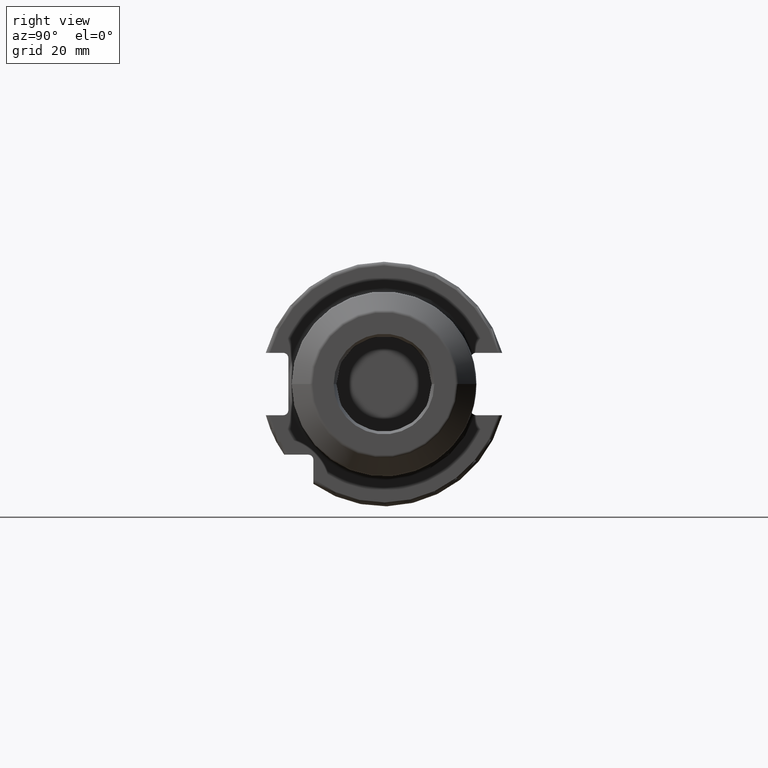
[diagram: clean part render]
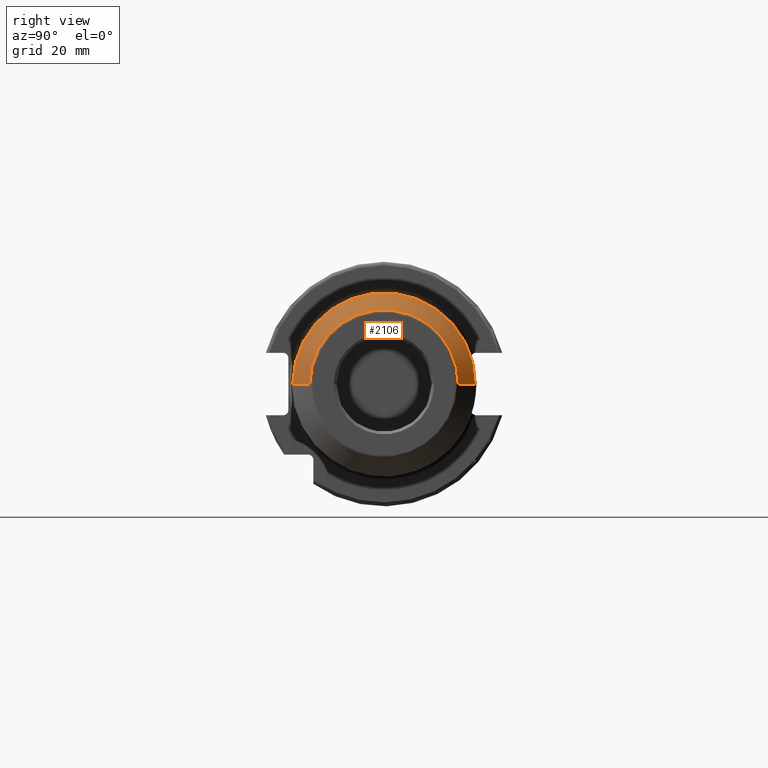
[diagram: same view with one face highlighted and labeled with its STEP entity id]
A machine part, right view. The second image highlights one B-rep face of the part: STEP entity #2106.
In plain terms, the highlighted conical surface has half-angle 45 deg.
Its self-contained STEP definition (entity closure, byte-faithful):
#279=DIRECTION('',(7.071067811865E-1,-7.071067811865E-1,-8.462109983681E-11));
#280=VECTOR('',#279,6.242640687118E0);
#281=CARTESIAN_POINT('',(9.529289321881E1,2.370710678119E1,2.871791463744E-9));
#282=LINE('',#281,#280);
#354=CARTESIAN_POINT('',(9.970710678119E1,0.E0,0.E0));
#355=DIRECTION('',(1.E0,0.E0,0.E0));
#356=DIRECTION('',(0.E0,1.E0,-7.484740775153E-12));
#357=AXIS2_PLACEMENT_3D('',#354,#355,#356);
#359=DIRECTION('',(7.071067811865E-1,7.071067811865E-1,8.462270488879E-11));
#360=VECTOR('',#359,6.242640687118E0);
#361=CARTESIAN_POINT('',(9.529289321881E1,-2.370710678119E1,
-2.871790790671E-9));
#362=LINE('',#361,#360);
#363=CARTESIAN_POINT('',(9.529289321881E1,0.E0,0.E0));
#364=DIRECTION('',(-1.E0,0.E0,0.E0));
#365=DIRECTION('',(0.E0,-1.E0,7.484863239833E-12));
#366=AXIS2_PLACEMENT_3D('',#363,#364,#365);
#1615=CARTESIAN_POINT('',(9.970710678119E1,-1.929289321881E1,
1.443999418475E-10));
#1616=CARTESIAN_POINT('',(9.970710678119E1,1.929289321881E1,
-1.444023045455E-10));
#1617=VERTEX_POINT('',#1615);
#1618=VERTEX_POINT('',#1616);
#1623=CARTESIAN_POINT('',(9.529289321881E1,2.370710678119E1,
-1.774415487861E-10));
#1624=CARTESIAN_POINT('',(9.529289321881E1,-2.370710678119E1,
1.774386455028E-10));
#1625=VERTEX_POINT('',#1623);
#1626=VERTEX_POINT('',#1624);
#2095=CARTESIAN_POINT('',(9.75E1,0.E0,0.E0));
#2096=DIRECTION('',(-1.E0,0.E0,0.E0));
#2097=DIRECTION('',(0.E0,0.E0,-1.E0));
#2098=AXIS2_PLACEMENT_3D('',#2095,#2096,#2097);
#2099=CONICAL_SURFACE('',#2098,2.15E1,4.5E1);
#2100=ORIENTED_EDGE('',*,*,#2089,.T.);
#2101=ORIENTED_EDGE('',*,*,#1979,.F.);
#2102=ORIENTED_EDGE('',*,*,#1934,.T.);
#2103=ORIENTED_EDGE('',*,*,#1976,.T.);
#2104=EDGE_LOOP('',(#2100,#2101,#2102,#2103));
#2105=FACE_OUTER_BOUND('',#2104,.F.);
#2106=ADVANCED_FACE('',(#2105),#2099,.T.);
#358=CIRCLE('',#357,1.929289321881E1);
#367=CIRCLE('',#366,2.370710678119E1);
#1934=EDGE_CURVE('',#1626,#1625,#367,.T.);
#1976=EDGE_CURVE('',#1625,#1618,#282,.T.);
#1979=EDGE_CURVE('',#1626,#1617,#362,.T.);
#2089=EDGE_CURVE('',#1618,#1617,#358,.T.);